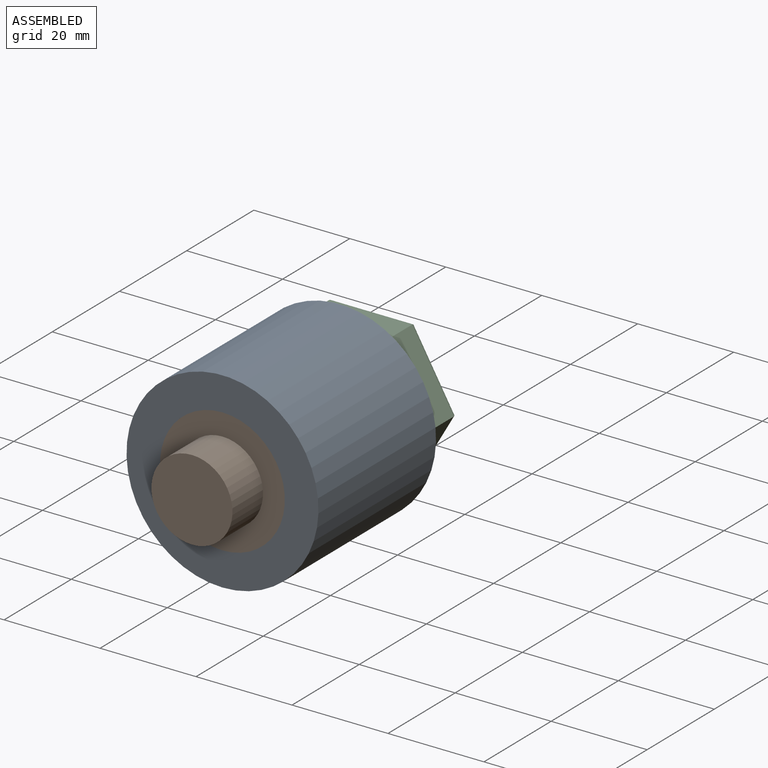
[diagram: assembled view]
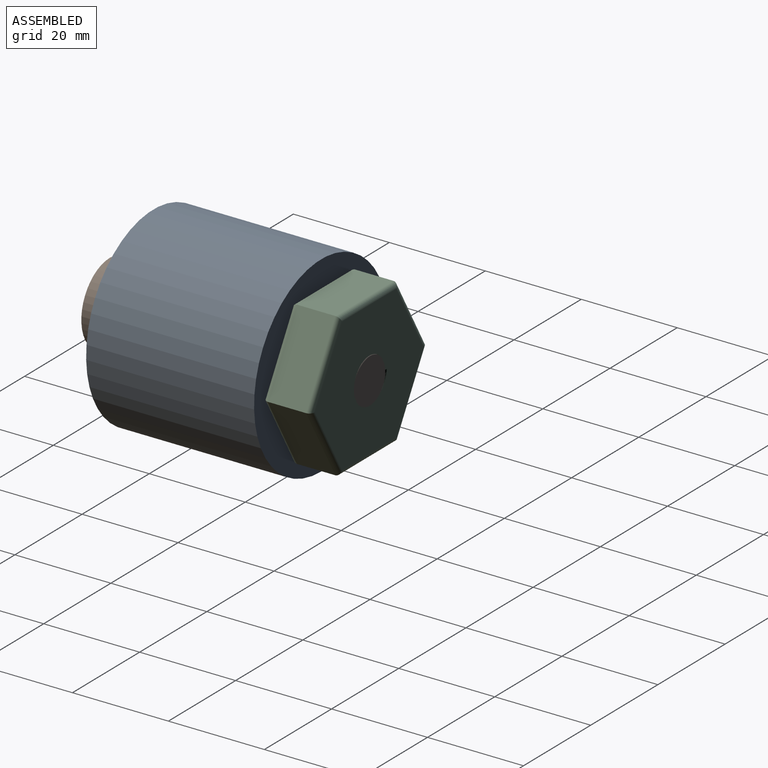
[diagram: assembled view, second angle]
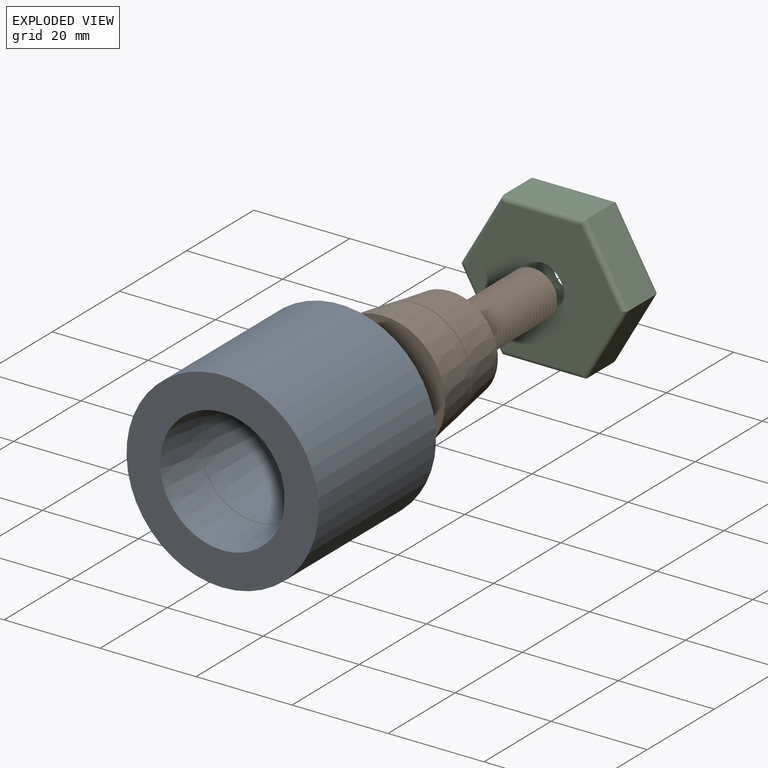
[diagram: exploded view]
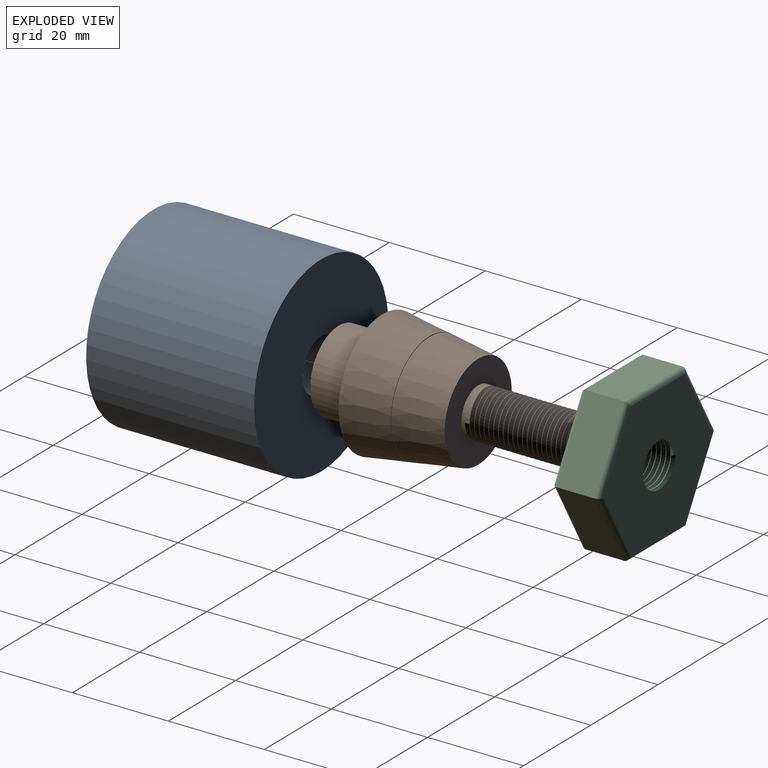
[diagram: exploded view, second angle]
ASSEMBLY  parts=3 mates=4
PART A: 10 faces, bbox 40x35x40 mm
  f0: cone r=9.25mm half-angle=8.5deg, axis (0,-1,0), area 988.8mm2, adj f1,f9
  f1: plane 18.5x18.5mm, normal (0,-1,0), area 173.8mm2, adj f0,f2
  f2: cylinder r=5.5mm len=11mm, axis (0,-1,0), area 345.6mm2, adj f1,f3
  f3: plane 40x40mm, normal (0,1,0), area 1161.6mm2, adj f2,f4
  f4: cylinder r=20mm len=40mm, axis (0,-1,0), area 4398.2mm2, adj f3,f5
  f5: plane 40x40mm, normal (0,-1,0), area 725.7mm2, adj f4,f6
  f6: cone r=11.51mm half-angle=8.5deg, axis (0,-1,0), area 772.4mm2, adj f5,f7
  f7: plane 23.19x23.19mm, normal (0,1,0), area 6.2mm2, adj f6,f8
  f8: cylinder r=11.6mm len=23.19mm, axis (0,-1,0), area 5.9mm2, adj f7,f9
  f9: plane 23.19x23.19mm, normal (0,-1,0), area 7.1mm2, adj f0,f8
PART B: 38 faces, bbox 26.6x55.2x26.6 mm
  f0: plane 26x26mm, normal (0,-1,0), area 306.6mm2, adj f1,f34
  f1: cylinder r=8.45mm len=16.9mm, axis (0,-1,0), area 482.4mm2, adj f0,f2
  f2: plane 16.9x16.9mm, normal (0,-1,0), area 224.3mm2, adj f1
  f3: plane 9.95x9.95mm, normal (0,1,0), area 68.1mm2, adj f28,f36,f37
  f4: cylinder r=5mm len=10mm, axis (0,-1,0), area 40.1mm2, adj f5,f29,f35,f36,f37
  f5: cylinder r=5mm len=10mm, axis (0,-1,0), area 3.1mm2, adj f4,f6,f36,f37
  f6: cylinder r=5mm len=10mm, axis (0,-1,0), area 3.1mm2, adj f5,f7,f36,f37
  f7: cylinder r=5mm len=10mm, axis (0,-1,0), area 3.1mm2, adj f6,f8,f36,f37
  f8: cylinder r=5mm len=10mm, axis (0,-1,0), area 3.1mm2, adj f7,f9,f36,f37
  f9: cylinder r=5mm len=10mm, axis (0,-1,0), area 3.1mm2, adj f8,f10,f36,f37
  f10: cylinder r=5mm len=10mm, axis (0,-1,0), area 3.1mm2, adj f9,f11,f36,f37
  f11: cylinder r=5mm len=10mm, axis (0,-1,0), area 3.1mm2, adj f10,f12,f36,f37
  f12: cylinder r=5mm len=10mm, axis (0,-1,0), area 3.1mm2, adj f11,f13,f36,f37
  f13: cylinder r=5mm len=10mm, axis (0,-1,0), area 3.1mm2, adj f12,f14,f36,f37
  f14: cylinder r=5mm len=10mm, axis (0,-1,0), area 3.1mm2, adj f13,f15,f36,f37
  f15: cylinder r=5mm len=10mm, axis (0,-1,0), area 3.1mm2, adj f14,f16,f36,f37
  f16: cylinder r=5mm len=10mm, axis (0,-1,0), area 3.1mm2, adj f15,f17,f36,f37
  f17: cylinder r=5mm len=10mm, axis (0,-1,0), area 3.1mm2, adj f16,f18,f36,f37
  f18: cylinder r=5mm len=10mm, axis (0,-1,0), area 3.1mm2, adj f17,f19,f36,f37
  f19: cylinder r=5mm len=10mm, axis (0,-1,0), area 3.1mm2, adj f18,f20,f36,f37
  f20: cylinder r=5mm len=10mm, axis (0,-1,0), area 3.1mm2, adj f19,f21,f36,f37
  f21: cylinder r=5mm len=10mm, axis (0,-1,0), area 3.1mm2, adj f20,f22,f36,f37
  f22: cylinder r=5mm len=10mm, axis (0,-1,0), area 3.1mm2, adj f21,f23,f36,f37
  f23: cylinder r=5mm len=10mm, axis (0,-1,0), area 3.1mm2, adj f22,f24,f36,f37
  f24: cylinder r=5mm len=10mm, axis (0,-1,0), area 3.1mm2, adj f23,f25,f36,f37
  f25: cylinder r=5mm len=10mm, axis (0,-1,0), area 3.1mm2, adj f24,f26,f36,f37
  f26: cylinder r=5mm len=10mm, axis (0,-1,0), area 3.1mm2, adj f25,f27,f36,f37
  f27: cylinder r=5mm len=10mm, axis (0,-1,0), area 3.1mm2, adj f26,f28,f36,f37
  f28: cylinder r=5mm len=2.97mm, axis (0,-1,0), area 0.2mm2, adj f3,f27,f36
  f29: plane 20x20mm, normal (0,1,0), area 235.6mm2, adj f4,f30
  f30: cone r=11.5mm half-angle=8.5deg, axis (0,-1,0), area 683mm2, adj f29,f31
  f31: plane 23x23mm, normal (0,-1,0), area 7.9mm2, adj f30,f32
  f32: cylinder r=11.39mm len=22.78mm, axis (0,-1,0), area 10.3mm2, adj f31,f33
  f33: plane 23.04x23.04mm, normal (0,1,0), area 9.4mm2, adj f32,f34
  f34: cone r=13mm half-angle=8.5deg, axis (0,-1,0), area 767.8mm2, adj f0,f33
  f35: plane 0.9x0.78mm, normal (0,0,-1), area 0.4mm2, adj f4,f36,f37
  f36: bspline ~24.28x11.55mm, area 616.7mm2, adj f3,f4,f5,f6,f7,f8,f9,f10
  f37: bspline ~24.78x11.55mm, area 626.8mm2, adj f3,f4,f5,f6,f7,f8,f9,f10
PART C: 25 faces, bbox 35.1x30.5x11.4 mm
  f0: plane 32.78x28.45mm, normal (0,0,1), area 611.1mm2, adj f8,f9,f10,f11,f12,f13,f14,f23
  f1: plane 17.32x8mm, normal (0,1,0), area 138.6mm2, adj f2,f6,f10,f16
  f2: plane 15x8.66mm, normal (-0.87,0.5,0), area 138.6mm2, adj f1,f3,f9,f15
  f3: plane 15x8.66mm, normal (-0.87,-0.5,0), area 138.6mm2, adj f2,f4,f11,f17
  f4: plane 17.32x8mm, normal (0,-1,0), area 138.6mm2, adj f3,f5,f13,f19
  f5: plane 15x8.66mm, normal (0.87,-0.5,0), area 138.6mm2, adj f4,f6,f14,f20
  f6: plane 15x8.66mm, normal (0.87,0.5,0), area 138.6mm2, adj f1,f5,f12,f18
  f7: plane 32.79x28.46mm, normal (0,0,-1), area 611.1mm2, adj f8,f15,f16,f17,f18,f19,f20,f21
  f8: cylinder r=4.5mm len=10mm, axis (0,0,-1), area 74mm2, adj f0,f7,f21,f22,f23,f24
  f9: cylinder r=1mm len=15.5mm, axis (0.5,0.87,0), area 26.3mm2, adj f0,f2,f10,f11
  f10: cylinder r=1mm len=17.32mm, axis (1,0,0), area 26.3mm2, adj f0,f1,f9,f12
  f11: cylinder r=1mm len=15.5mm, axis (-0.5,0.87,0), area 26.3mm2, adj f0,f3,f9,f13
  f12: cylinder r=1mm len=15.5mm, axis (0.5,-0.87,0), area 26.3mm2, adj f0,f6,f10,f14
  f13: cylinder r=1mm len=17.32mm, axis (-1,0,0), area 26.3mm2, adj f0,f4,f11,f14
  f14: cylinder r=1mm len=15.5mm, axis (-0.5,-0.87,0), area 26.3mm2, adj f0,f5,f12,f13
  f15: cylinder r=1mm len=15.5mm, axis (-0.5,-0.87,0), area 26.3mm2, adj f2,f7,f16,f17
  f16: cylinder r=1mm len=17.32mm, axis (-1,0,0), area 26.3mm2, adj f1,f7,f15,f18
  f17: cylinder r=1mm len=15.5mm, axis (0.5,-0.87,0), area 26.3mm2, adj f3,f7,f15,f19
  f18: cylinder r=1mm len=15.5mm, axis (-0.5,0.87,0), area 26.3mm2, adj f6,f7,f16,f20
  f19: cylinder r=1mm len=17.32mm, axis (1,0,0), area 26.3mm2, adj f4,f7,f17,f20
  f20: cylinder r=1mm len=15.5mm, axis (0.5,0.87,0), area 26.3mm2, adj f5,f7,f18,f19
  f21: plane 0.7x0.4mm, normal (0,1,0), area 0.1mm2, adj f7,f8,f24
  f22: bspline ~12.01x10.45mm, area 241.7mm2, adj f7,f8,f23,f24
  f23: plane 0.7x0.4mm, normal (0,-1,0), area 0.1mm2, adj f0,f8,f22
  f24: bspline ~12.01x10.45mm, area 241.1mm2, adj f0,f8,f21,f22
PLACE A t=(4.5,0,10.73)mm
PLACE B t=(4.5,0,10.73)mm
PLACE C rot(axis=(0,-0.71,0.71),180deg) t=(4.5,35,10.73)mm
MATE planar A.f0 <-> B.f1  axis (0,-1,0) through (4.5,-10,10.73)mm
MATE slider C.f8 <-> A.f0  axis (0,-1,0) through (4.5,25,10.73)mm
MATE slider A.f0 <-> B.f1  axis (0,-1,0) through (4.5,7.5,10.73)mm
MATE planar C.f0 <-> A.f0  axis (0,-1,0) through (4.52,25,10.71)mm
